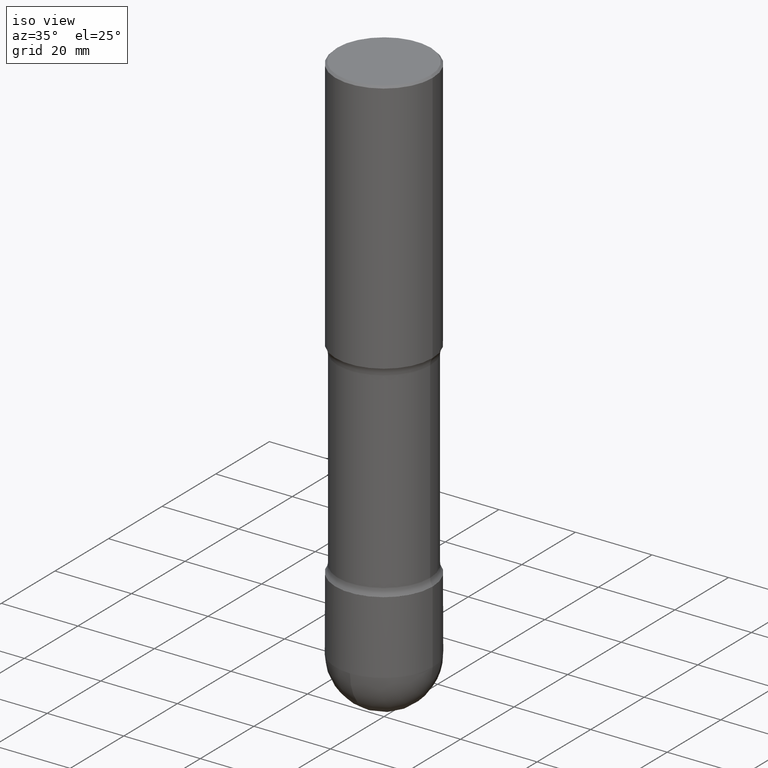
[diagram: clean part render]
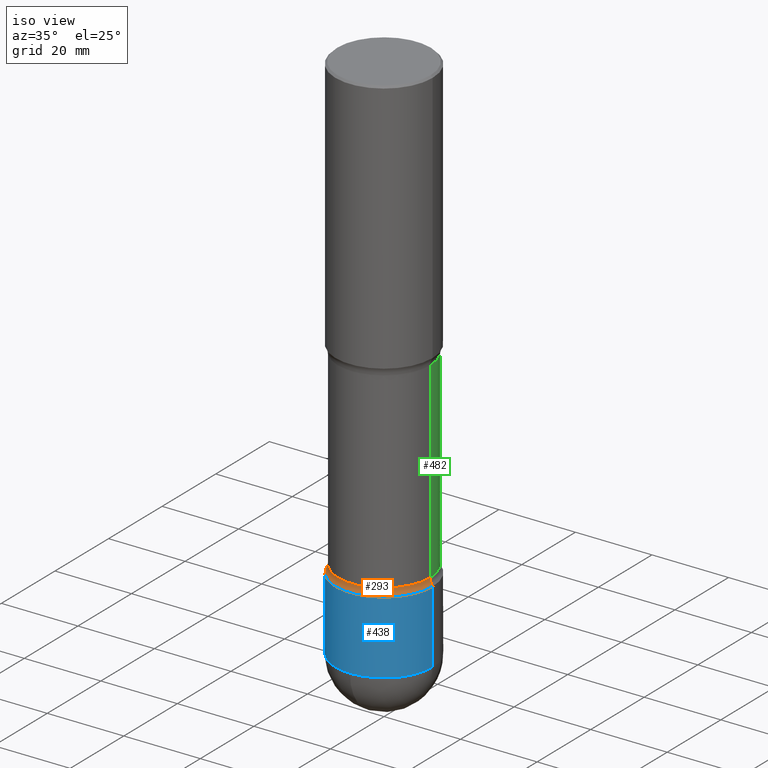
[diagram: same view with three faces highlighted in distinct colors, each labeled with its STEP entity id]
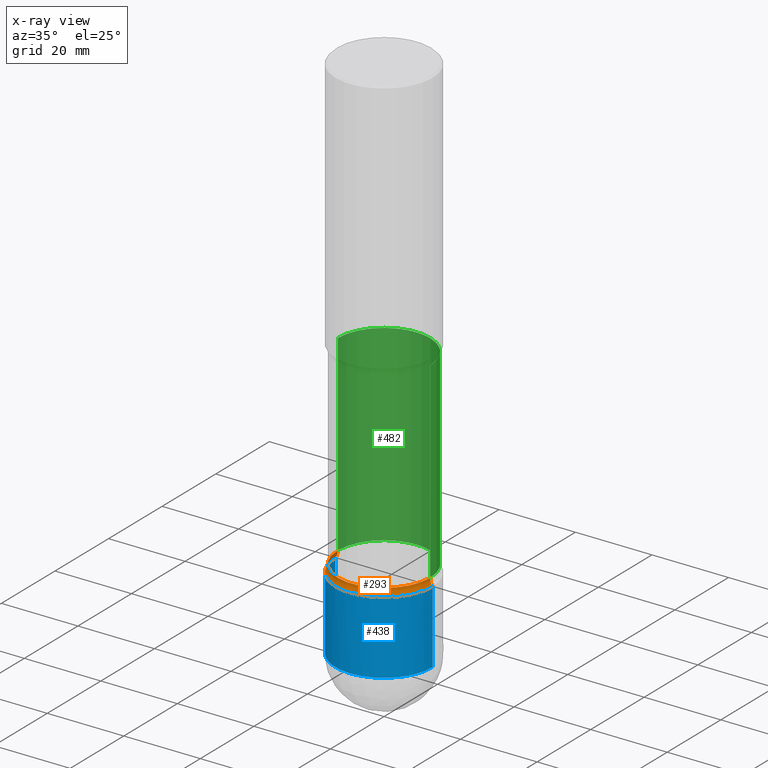
[diagram: x-ray of the same camera — body ghosted, the three highlighted faces saturated]
A machine part, iso view with three faces highlighted in distinct colors.
The next image is the same camera in x-ray (body ghosted, the three faces saturated) — at least one of them is partly hidden behind the body in this view.
Their STEP definitions:

[orange] entity #293 — the highlighted toroidal blend (fillet) surface has major radius 15.24 mm and minor (blend) radius 3.175 mm.
#16 = DIRECTION ( 'NONE',  ( -1.000000000000000000, 6.860497997771519729E-15, 0.000000000000000000 ) ) ;
#17 = ORIENTED_EDGE ( 'NONE', *, *, #170, .F. ) ;
#34 = AXIS2_PLACEMENT_3D ( 'NONE', #493, #284, #98 ) ;
#42 = EDGE_CURVE ( 'NONE', #60, #514, #352, .T. ) ;
#60 = VERTEX_POINT ( 'NONE', #298 ) ;
#67 = DIRECTION ( 'NONE',  ( 2.445468806185136597E-29, -3.491481338843145583E-15, -1.000000000000000000 ) ) ;
#69 = DIRECTION ( 'NONE',  ( 2.445468806185136597E-29, -3.491481338843145583E-15, -1.000000000000000000 ) ) ;
#73 = CARTESIAN_POINT ( 'NONE',  ( -0.4749999999999996447, -1.300576798719073170E-14, -4.674999999999999822 ) ) ;
#78 = TOROIDAL_SURFACE ( 'NONE', #538, 0.6000000000000026423, 0.1250000000000030254 ) ;
#92 = CARTESIAN_POINT ( 'NONE',  ( 0.4997860788667682908, -2.001231891385972793E-14, -4.749713921133230876 ) ) ;
#98 = DIRECTION ( 'NONE',  ( -1.000000000000000000, 6.982962677686266711E-15, 0.000000000000000000 ) ) ;
#111 = DIRECTION ( 'NONE',  ( 6.860497997771531562E-15, 1.000000000000000000, -3.491481338843145583E-15 ) ) ;
#112 = EDGE_CURVE ( 'NONE', #382, #514, #277, .T. ) ;
#125 = AXIS2_PLACEMENT_3D ( 'NONE', #187, #111, #16 ) ;
#152 = ORIENTED_EDGE ( 'NONE', *, *, #112, .F. ) ;
#170 = EDGE_CURVE ( 'NONE', #416, #382, #191, .T. ) ;
#175 = ORIENTED_EDGE ( 'NONE', *, *, #42, .T. ) ;
#187 = CARTESIAN_POINT ( 'NONE',  ( 0.6000000000000026423, -2.043897405775464090E-14, -4.674999999999999822 ) ) ;
#191 = CIRCLE ( 'NONE', #34, 0.4997860788667682908 ) ;
#209 = AXIS2_PLACEMENT_3D ( 'NONE', #422, #508, #253 ) ;
#217 = CARTESIAN_POINT ( 'NONE',  ( 1.143256666891551449E-28, -1.632267525909170681E-14, -4.674999999999999822 ) ) ;
#253 = DIRECTION ( 'NONE',  ( 1.000000000000000000, -6.982962677686265133E-15, 0.000000000000000000 ) ) ;
#277 = CIRCLE ( 'NONE', #209, 0.1250000000000030254 ) ;
#284 = DIRECTION ( 'NONE',  ( 2.445468806185136597E-29, -3.491481338843145583E-15, -1.000000000000000000 ) ) ;
#286 = CARTESIAN_POINT ( 'NONE',  ( -0.4997860788667682908, -1.309354998492637240E-14, -4.749713921133230876 ) ) ;
#291 = AXIS2_PLACEMENT_3D ( 'NONE', #464, #69, #549 ) ;
#293 = ADVANCED_FACE ( 'NONE', ( #433 ), #78, .F. ) ;
#296 = EDGE_LOOP ( 'NONE', ( #17, #507, #175, #152 ) ) ;
#298 = CARTESIAN_POINT ( 'NONE',  ( 0.4749999999999996447, -1.613357398592557292E-14, -4.674999999999999822 ) ) ;
#300 = DIRECTION ( 'NONE',  ( -1.000000000000000000, 6.982962677686266711E-15, -4.883557194083112340E-29 ) ) ;
#315 = CIRCLE ( 'NONE', #125, 0.1250000000000030254 ) ;
#338 = EDGE_CURVE ( 'NONE', #416, #60, #315, .T. ) ;
#352 = CIRCLE ( 'NONE', #291, 0.4749999999999996447 ) ;
#382 = VERTEX_POINT ( 'NONE', #286 ) ;
#416 = VERTEX_POINT ( 'NONE', #92 ) ;
#422 = CARTESIAN_POINT ( 'NONE',  ( -0.6000000000000026423, -1.213289765247992785E-14, -4.674999999999999822 ) ) ;
#433 = FACE_OUTER_BOUND ( 'NONE', #296, .T. ) ;
#464 = CARTESIAN_POINT ( 'NONE',  ( 1.143256666891551449E-28, -1.632267525909170681E-14, -4.674999999999999822 ) ) ;
#493 = CARTESIAN_POINT ( 'NONE',  ( 1.161527723243460804E-28, -1.658353752048018055E-14, -4.749713921133230876 ) ) ;
#507 = ORIENTED_EDGE ( 'NONE', *, *, #338, .T. ) ;
#508 = DIRECTION ( 'NONE',  ( -6.982962677686266711E-15, -1.000000000000000000, 3.491481338843145583E-15 ) ) ;
#514 = VERTEX_POINT ( 'NONE', #73 ) ;
#538 = AXIS2_PLACEMENT_3D ( 'NONE', #217, #67, #300 ) ;
#549 = DIRECTION ( 'NONE',  ( -1.000000000000000000, 6.982962677686265922E-15, 0.000000000000000000 ) ) ;

[blue] entity #438 — the highlighted cylindrical surface (partial cylindrical patch) has radius 12.7 mm, axis along (-0, 0, 1).
#9 = ORIENTED_EDGE ( 'NONE', *, *, #68, .T. ) ;
#12 = VERTEX_POINT ( 'NONE', #450 ) ;
#23 = ORIENTED_EDGE ( 'NONE', *, *, #459, .T. ) ;
#24 = DIRECTION ( 'NONE',  ( -2.445468806185136877E-29, 3.491481338843145188E-15, 1.000000000000000000 ) ) ;
#26 = DIRECTION ( 'NONE',  ( 1.000000000000000000, -6.982962677686268288E-15, 0.000000000000000000 ) ) ;
#68 = EDGE_CURVE ( 'NONE', #365, #151, #88, .T. ) ;
#80 = VERTEX_POINT ( 'NONE', #497 ) ;
#88 = CIRCLE ( 'NONE', #443, 0.4999999999999990563 ) ;
#94 = LINE ( 'NONE', #455, #165 ) ;
#96 = VERTEX_POINT ( 'NONE', #346 ) ;
#116 = CIRCLE ( 'NONE', #178, 0.4999999999999991673 ) ;
#120 = CARTESIAN_POINT ( 'NONE',  ( -3.552713678800360118E-15, -0.5000000000000184297, -5.499999999999999112 ) ) ;
#133 = EDGE_CURVE ( 'NONE', #365, #80, #249, .T. ) ;
#151 = VERTEX_POINT ( 'NONE', #120 ) ;
#159 = ORIENTED_EDGE ( 'NONE', *, *, #360, .T. ) ;
#165 = VECTOR ( 'NONE', #272, 39.37007874015748143 ) ;
#177 = DIRECTION ( 'NONE',  ( -2.445468806185136597E-29, 3.491481338843145583E-15, 1.000000000000000000 ) ) ;
#178 = AXIS2_PLACEMENT_3D ( 'NONE', #366, #527, #374 ) ;
#219 = DIRECTION ( 'NONE',  ( 1.000000000000000000, -6.982962677686266711E-15, 4.876176775795935232E-29 ) ) ;
#222 = CARTESIAN_POINT ( 'NONE',  ( -0.4999999999999990563, -1.434112818277063167E-14, -5.500000000000000888 ) ) ;
#235 = ORIENTED_EDGE ( 'NONE', *, *, #383, .F. ) ;
#249 = LINE ( 'NONE', #499, #330 ) ;
#251 = CARTESIAN_POINT ( 'NONE',  ( 1.345007843401825128E-28, -1.920314736363730603E-14, -5.500000000000000888 ) ) ;
#272 = DIRECTION ( 'NONE',  ( -2.445468806185136877E-29, 3.491481338843145188E-15, 1.000000000000000000 ) ) ;
#310 = AXIS2_PLACEMENT_3D ( 'NONE', #414, #177, #219 ) ;
#330 = VECTOR ( 'NONE', #24, 39.37007874015748143 ) ;
#334 = FACE_OUTER_BOUND ( 'NONE', #335, .T. ) ;
#335 = EDGE_LOOP ( 'NONE', ( #423, #9, #23, #159, #235 ) ) ;
#346 = CARTESIAN_POINT ( 'NONE',  ( 0.4999999999999990563, -2.138532320041425333E-14, -5.500000000000000888 ) ) ;
#360 = EDGE_CURVE ( 'NONE', #96, #12, #94, .T. ) ;
#364 = CYLINDRICAL_SURFACE ( 'NONE', #310, 0.4999999999999991118 ) ;
#365 = VERTEX_POINT ( 'NONE', #222 ) ;
#366 = CARTESIAN_POINT ( 'NONE',  ( 1.161597682937940108E-28, -1.658453635950494339E-14, -4.750000000000000000 ) ) ;
#374 = DIRECTION ( 'NONE',  ( 1.000000000000000000, -6.982962677686262766E-15, 0.000000000000000000 ) ) ;
#383 = EDGE_CURVE ( 'NONE', #80, #12, #116, .T. ) ;
#409 = DIRECTION ( 'NONE',  ( 1.000000000000000000, -6.982962677686268288E-15, 0.000000000000000000 ) ) ;
#414 = CARTESIAN_POINT ( 'NONE',  ( 0.000000000000000000, 0.000000000000000000, 0.000000000000000000 ) ) ;
#418 = AXIS2_PLACEMENT_3D ( 'NONE', #454, #496, #409 ) ;
#423 = ORIENTED_EDGE ( 'NONE', *, *, #133, .F. ) ;
#438 = ADVANCED_FACE ( 'NONE', ( #334 ), #364, .T. ) ;
#443 = AXIS2_PLACEMENT_3D ( 'NONE', #251, #509, #26 ) ;
#450 = CARTESIAN_POINT ( 'NONE',  ( 0.4999999999999991673, -2.007601769834806728E-14, -4.750000000000000000 ) ) ;
#454 = CARTESIAN_POINT ( 'NONE',  ( 1.345007843401825128E-28, -1.920314736363730603E-14, -5.500000000000000888 ) ) ;
#455 = CARTESIAN_POINT ( 'NONE',  ( 0.4999999999999991118, -3.491481338843127044E-15, 2.438088387897963412E-29 ) ) ;
#459 = EDGE_CURVE ( 'NONE', #151, #96, #563, .T. ) ;
#496 = DIRECTION ( 'NONE',  ( -2.445468806185136597E-29, 3.491481338843145583E-15, 1.000000000000000000 ) ) ;
#497 = CARTESIAN_POINT ( 'NONE',  ( -0.4999999999999992228, -1.434112818277062851E-14, -4.750000000000000000 ) ) ;
#499 = CARTESIAN_POINT ( 'NONE',  ( -0.4999999999999991118, 3.552713678800494618E-15, -2.459467545127448407E-29 ) ) ;
#509 = DIRECTION ( 'NONE',  ( -2.445468806185136597E-29, 3.491481338843145583E-15, 1.000000000000000000 ) ) ;
#527 = DIRECTION ( 'NONE',  ( -2.445468806185136597E-29, 3.491481338843145583E-15, 1.000000000000000000 ) ) ;
#563 = CIRCLE ( 'NONE', #418, 0.4999999999999990563 ) ;

[green] entity #482 — the highlighted cylindrical surface (partial cylindrical patch) has radius 12.065 mm, axis along (0, -0, -1).
#30 = EDGE_CURVE ( 'NONE', #428, #514, #179, .T. ) ;
#53 = DIRECTION ( 'NONE',  ( 2.445468806185136877E-29, -3.491481338843145188E-15, -1.000000000000000000 ) ) ;
#60 = VERTEX_POINT ( 'NONE', #298 ) ;
#70 = VERTEX_POINT ( 'NONE', #161 ) ;
#73 = CARTESIAN_POINT ( 'NONE',  ( -0.4749999999999996447, -1.300576798719073170E-14, -4.674999999999999822 ) ) ;
#76 = CIRCLE ( 'NONE', #203, 0.4749999999999993672 ) ;
#77 = DIRECTION ( 'NONE',  ( 2.445468806185136597E-29, -3.491481338843145583E-15, -1.000000000000000000 ) ) ;
#87 = EDGE_CURVE ( 'NONE', #514, #60, #314, .T. ) ;
#90 = VECTOR ( 'NONE', #289, 39.37007874015748143 ) ;
#117 = AXIS2_PLACEMENT_3D ( 'NONE', #301, #77, #118 ) ;
#118 = DIRECTION ( 'NONE',  ( -1.000000000000000000, 6.982962677686264344E-15, 0.000000000000000000 ) ) ;
#123 = ORIENTED_EDGE ( 'NONE', *, *, #87, .F. ) ;
#142 = CARTESIAN_POINT ( 'NONE',  ( -0.4749999999999993672, -6.110092342975520448E-15, -2.700000000000000178 ) ) ;
#145 = VECTOR ( 'NONE', #53, 39.37007874015748143 ) ;
#153 = CYLINDRICAL_SURFACE ( 'NONE', #117, 0.4749999999999995337 ) ;
#161 = CARTESIAN_POINT ( 'NONE',  ( 0.4749999999999993672, -1.264056183858350096E-14, -2.700000000000000178 ) ) ;
#179 = LINE ( 'NONE', #321, #145 ) ;
#203 = AXIS2_PLACEMENT_3D ( 'NONE', #424, #530, #363 ) ;
#230 = DIRECTION ( 'NONE',  ( 2.445468806185136597E-29, -3.491481338843145583E-15, -1.000000000000000000 ) ) ;
#250 = ORIENTED_EDGE ( 'NONE', *, *, #30, .F. ) ;
#289 = DIRECTION ( 'NONE',  ( 2.445468806185136877E-29, -3.491481338843145188E-15, -1.000000000000000000 ) ) ;
#298 = CARTESIAN_POINT ( 'NONE',  ( 0.4749999999999996447, -1.613357398592557292E-14, -4.674999999999999822 ) ) ;
#301 = CARTESIAN_POINT ( 'NONE',  ( 1.161597682937940108E-28, -1.658453635950494339E-14, -4.750000000000000000 ) ) ;
#304 = LINE ( 'NONE', #426, #90 ) ;
#308 = EDGE_CURVE ( 'NONE', #428, #70, #76, .T. ) ;
#314 = CIRCLE ( 'NONE', #460, 0.4749999999999996447 ) ;
#321 = CARTESIAN_POINT ( 'NONE',  ( -0.4749999999999995337, -1.326762908760396986E-14, -4.750000000000000000 ) ) ;
#329 = ORIENTED_EDGE ( 'NONE', *, *, #528, .T. ) ;
#349 = EDGE_LOOP ( 'NONE', ( #458, #329, #123, #250 ) ) ;
#363 = DIRECTION ( 'NONE',  ( -1.000000000000000000, 6.982962677686266711E-15, 0.000000000000000000 ) ) ;
#372 = DIRECTION ( 'NONE',  ( -1.000000000000000000, 6.982962677686265922E-15, 0.000000000000000000 ) ) ;
#404 = FACE_OUTER_BOUND ( 'NONE', #349, .T. ) ;
#424 = CARTESIAN_POINT ( 'NONE',  ( 6.602765776699870157E-29, -9.426999614876493191E-15, -2.700000000000000178 ) ) ;
#426 = CARTESIAN_POINT ( 'NONE',  ( 0.4749999999999995337, -1.984327290844641394E-14, -4.750000000000000000 ) ) ;
#428 = VERTEX_POINT ( 'NONE', #142 ) ;
#458 = ORIENTED_EDGE ( 'NONE', *, *, #308, .T. ) ;
#460 = AXIS2_PLACEMENT_3D ( 'NONE', #488, #230, #372 ) ;
#482 = ADVANCED_FACE ( 'NONE', ( #404 ), #153, .T. ) ;
#488 = CARTESIAN_POINT ( 'NONE',  ( 1.143256666891551449E-28, -1.632267525909170681E-14, -4.674999999999999822 ) ) ;
#514 = VERTEX_POINT ( 'NONE', #73 ) ;
#528 = EDGE_CURVE ( 'NONE', #70, #60, #304, .T. ) ;
#530 = DIRECTION ( 'NONE',  ( 2.445468806185136597E-29, -3.491481338843145583E-15, -1.000000000000000000 ) ) ;